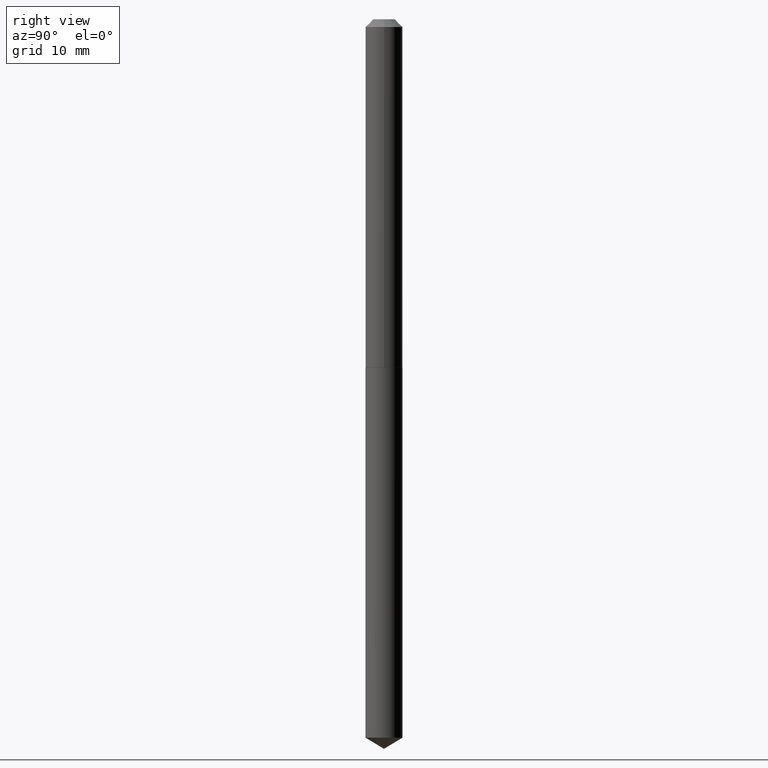
[diagram: clean part render]
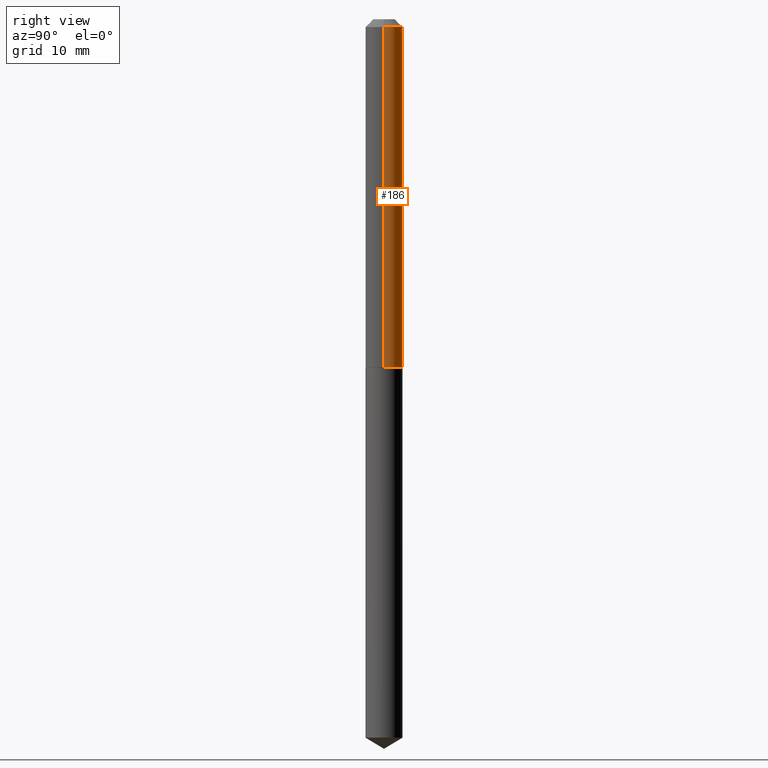
[diagram: same view with one face highlighted and labeled with its STEP entity id]
A machine part, right view. The second image highlights one B-rep face of the part: STEP entity #186.
In plain terms, the highlighted cylindrical surface (edge-blend (fillet) strip) has radius 1.8999 mm, axis along (-0, 0, 1).
Its self-contained STEP definition (entity closure, byte-faithful):
#2 = VECTOR ( 'NONE', #390, 39.37007874015748143 ) ;
#8 = DIRECTION ( 'NONE',  ( -2.445468806185136597E-29, 3.491481338843145583E-15, 1.000000000000000000 ) ) ;
#36 = FACE_OUTER_BOUND ( 'NONE', #307, .T. ) ;
#37 = VERTEX_POINT ( 'NONE', #353 ) ;
#40 = EDGE_CURVE ( 'NONE', #209, #134, #263, .T. ) ;
#45 = EDGE_CURVE ( 'NONE', #344, #37, #171, .T. ) ;
#48 = CIRCLE ( 'NONE', #173, 0.07480000000000018578 ) ;
#52 = DIRECTION ( 'NONE',  ( 1.000000000000000000, -6.982962677686271444E-15, 0.000000000000000000 ) ) ;
#54 = DIRECTION ( 'NONE',  ( -2.445468806185136597E-29, 3.491481338843145583E-15, 1.000000000000000000 ) ) ;
#62 = EDGE_CURVE ( 'NONE', #37, #134, #109, .T. ) ;
#66 = DIRECTION ( 'NONE',  ( 1.000000000000000000, -6.982962677686265922E-15, 4.876176775795935232E-29 ) ) ;
#99 = EDGE_CURVE ( 'NONE', #344, #209, #48, .T. ) ;
#109 = CIRCLE ( 'NONE', #368, 0.07480000000000000537 ) ;
#116 = AXIS2_PLACEMENT_3D ( 'NONE', #119, #8, #66 ) ;
#119 = CARTESIAN_POINT ( 'NONE',  ( 0.000000000000000000, 0.000000000000000000, 0.000000000000000000 ) ) ;
#134 = VERTEX_POINT ( 'NONE', #323 ) ;
#143 = CARTESIAN_POINT ( 'NONE',  ( 7.642090019328601786E-31, -1.091087918388490144E-16, -0.03125000000000020123 ) ) ;
#156 = ORIENTED_EDGE ( 'NONE', *, *, #99, .T. ) ;
#159 = ORIENTED_EDGE ( 'NONE', *, *, #40, .T. ) ;
#169 = ORIENTED_EDGE ( 'NONE', *, *, #45, .F. ) ;
#171 = LINE ( 'NONE', #203, #2 ) ;
#173 = AXIS2_PLACEMENT_3D ( 'NONE', #324, #54, #52 ) ;
#186 = ADVANCED_FACE ( 'NONE', ( #36 ), #240, .T. ) ;
#203 = CARTESIAN_POINT ( 'NONE',  ( 0.07480000000000010252, -5.223256082909333921E-16, 3.647380228295364368E-30 ) ) ;
#209 = VERTEX_POINT ( 'NONE', #359 ) ;
#233 = CARTESIAN_POINT ( 'NONE',  ( -0.07480000000000010252, 5.314859663485556675E-16, -3.679363447510674285E-30 ) ) ;
#236 = DIRECTION ( 'NONE',  ( 1.000000000000000000, -6.982962677686266711E-15, 0.000000000000000000 ) ) ;
#240 = CYLINDRICAL_SURFACE ( 'NONE', #116, 0.07480000000000010252 ) ;
#263 = LINE ( 'NONE', #233, #294 ) ;
#266 = CARTESIAN_POINT ( 'NONE',  ( 0.07480000000000018578, -5.441822814720925495E-15, -1.408999999999999586 ) ) ;
#294 = VECTOR ( 'NONE', #321, 39.37007874015748143 ) ;
#307 = EDGE_LOOP ( 'NONE', ( #156, #159, #342, #169 ) ) ;
#321 = DIRECTION ( 'NONE',  ( -2.445468806185136877E-29, 3.491481338843145188E-15, 1.000000000000000000 ) ) ;
#323 = CARTESIAN_POINT ( 'NONE',  ( -0.07480000000000000537, -1.982817032785863356E-15, -0.03125000000000020123 ) ) ;
#324 = CARTESIAN_POINT ( 'NONE',  ( 3.445665547914856505E-29, -4.919497206429991117E-15, -1.408999999999999586 ) ) ;
#342 = ORIENTED_EDGE ( 'NONE', *, *, #62, .F. ) ;
#344 = VERTEX_POINT ( 'NONE', #266 ) ;
#349 = DIRECTION ( 'NONE',  ( -2.445468806185136597E-29, 3.491481338843145583E-15, 1.000000000000000000 ) ) ;
#353 = CARTESIAN_POINT ( 'NONE',  ( 0.07480000000000000537, -6.314344001297818025E-16, -0.03125000000000020123 ) ) ;
#359 = CARTESIAN_POINT ( 'NONE',  ( -0.07480000000000018578, -4.388011240081434759E-15, -1.408999999999999586 ) ) ;
#368 = AXIS2_PLACEMENT_3D ( 'NONE', #143, #349, #236 ) ;
#390 = DIRECTION ( 'NONE',  ( -2.445468806185136877E-29, 3.491481338843145188E-15, 1.000000000000000000 ) ) ;